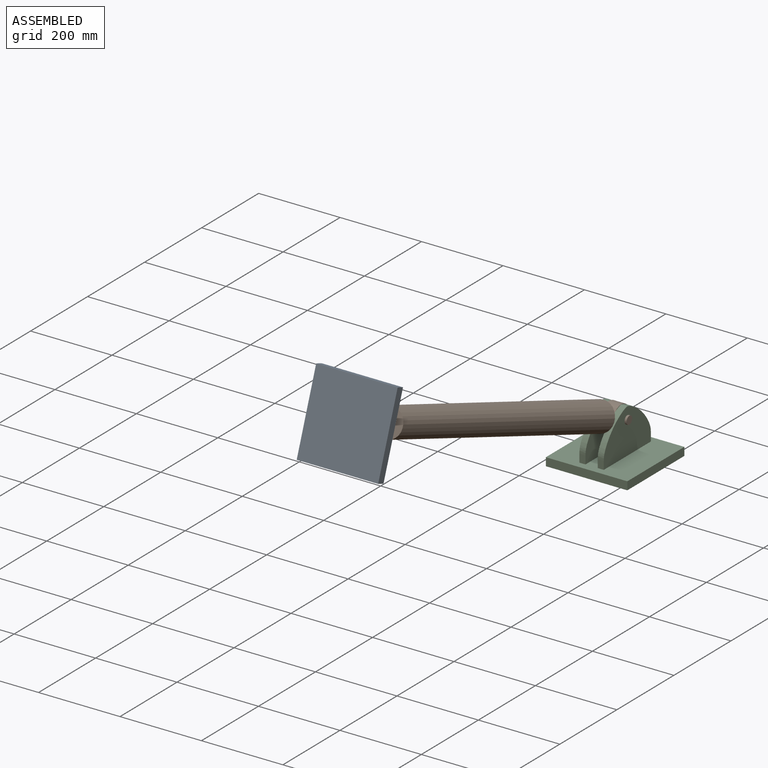
[diagram: assembled view]
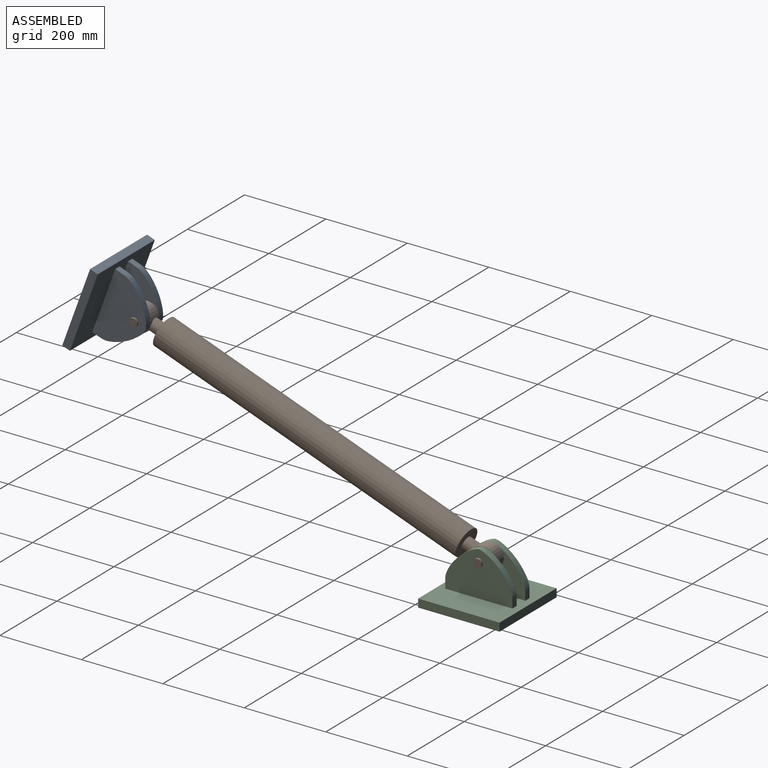
[diagram: assembled view, second angle]
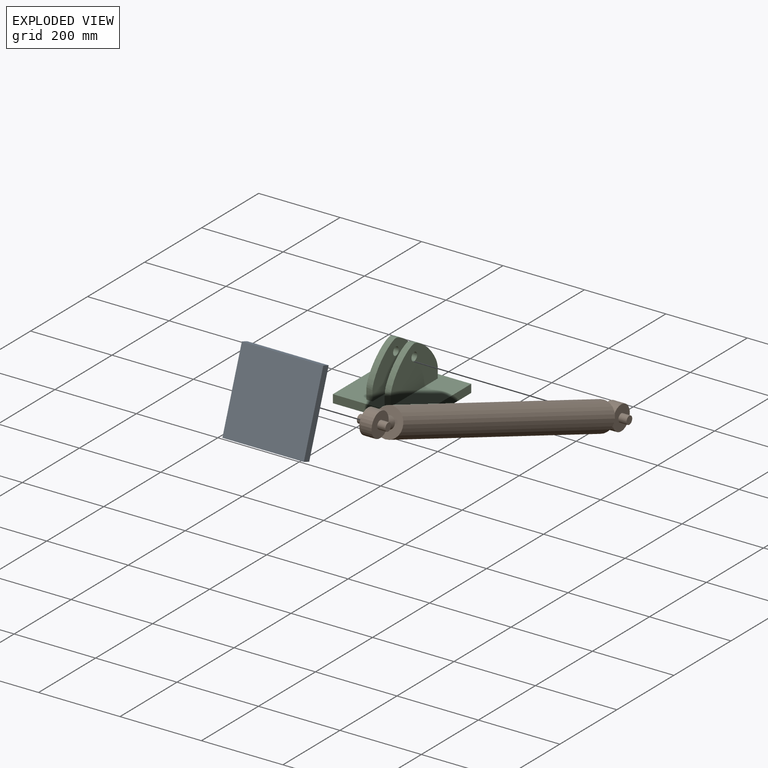
[diagram: exploded view]
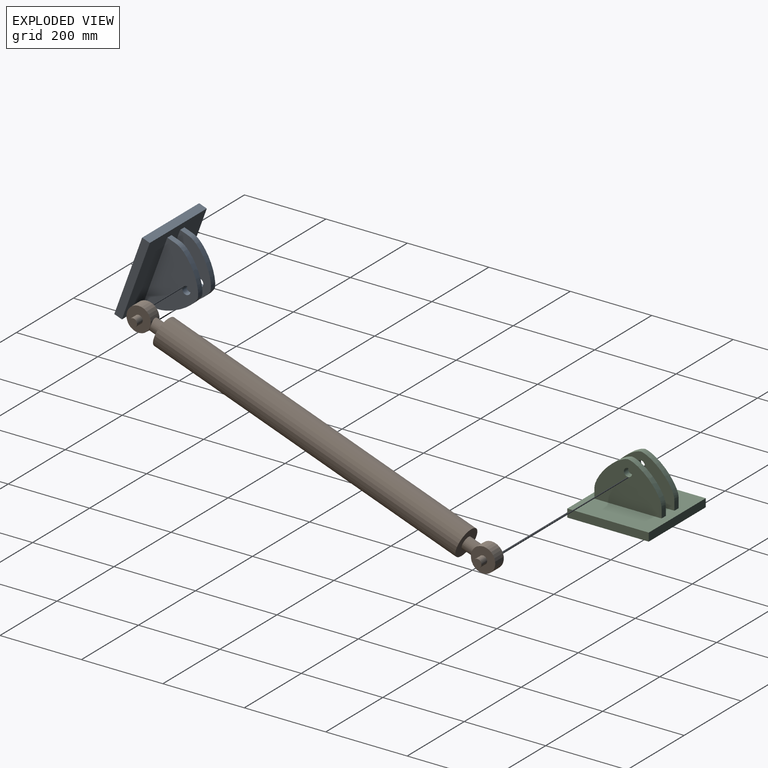
[diagram: exploded view, second angle]
ASSEMBLY  parts=3 mates=2
PART A: 20 faces, bbox 200x200x130 mm
  f0: bspline ~90x90mm, area 1930mm2, adj f1,f2,f3,f4
  f1: bspline ~90x90mm, area 1930mm2, adj f0,f2,f4,f5
  f2: plane 165.01x109.85mm, normal (-1,0,0), area 13243.1mm2, adj f0,f1,f3,f5,f6,f19
  f3: plane 20x15mm, normal (0,-1,0), area 300mm2, adj f0,f2,f4,f6
  f4: plane 165.01x109.85mm, normal (1,0,0), area 13243.3mm2, adj f0,f1,f3,f5,f6,f19
  f5: plane 20x15mm, normal (0,1,0), area 300mm2, adj f1,f2,f4,f6
  f6: plane 200x200mm, normal (0,0,1), area 35050mm2, adj f2,f3,f4,f5,f7,f8,f9,f10
  f7: plane 200x20mm, normal (1,0,0), area 4000mm2, adj f6,f8,f10,f11
  f8: plane 200x20mm, normal (0,1,0), area 4000mm2, adj f6,f7,f9,f11
  f9: plane 200x20mm, normal (-1,0,0), area 4000mm2, adj f6,f8,f10,f11
  f10: plane 200x20mm, normal (0,-1,0), area 4000mm2, adj f6,f7,f9,f11
  f11: plane 200x200mm, normal (0,0,-1), area 40000mm2, adj f7,f8,f9,f10
  f12: plane 165.01x109.85mm, normal (-1,0,0), area 13243.1mm2, adj f6,f13,f15,f16,f17,f18
  f13: plane 20x15mm, normal (0,-1,0), area 300mm2, adj f6,f12,f14,f16
  f14: plane 165.01x109.85mm, normal (1,0,0), area 13243.3mm2, adj f6,f13,f15,f16,f17,f18
  f15: plane 20x15mm, normal (0,1,0), area 300mm2, adj f6,f12,f14,f17
  f16: bspline ~90x90mm, area 1930mm2, adj f12,f13,f14,f17
  f17: bspline ~90x90mm, area 1930mm2, adj f12,f14,f15,f16
  f18: cylinder r=10mm len=20mm, axis (1,0,0), area 942.5mm2, adj f12,f14
  f19: cylinder r=10mm len=20mm, axis (1,0,0), area 942.5mm2, adj f2,f4
PART B: 19 faces, bbox 70x70x960 mm
  f0: cylinder r=35mm len=790mm, axis (0,0,-1), area 173730.1mm2, adj f1,f2
  f1: plane 70x70mm, normal (0,0,1), area 3141.6mm2, adj f0,f3
  f2: plane 70x70mm, normal (0,0,-1), area 3141.6mm2, adj f0,f11
  f3: cylinder r=15mm len=30mm, axis (0,0,-1), area 2542.3mm2, adj f1,f6
  f4: plane 60x60mm, normal (0,-1,0), area 2513.3mm2, adj f6,f9
  f5: plane 60x60mm, normal (0,1,0), area 2513.3mm2, adj f6,f7
  f6: cylinder r=30mm len=60mm, axis (0,1,0), area 4923.3mm2, adj f3,f4,f5
  f7: cylinder r=10mm len=20mm, axis (0,-1,0), area 1256.6mm2, adj f5,f8
  f8: plane 20x20mm, normal (0,1,0), area 314.2mm2, adj f7
  f9: cylinder r=10mm len=20mm, axis (0,1,0), area 1256.6mm2, adj f4,f10
  f10: plane 20x20mm, normal (0,-1,0), area 314.2mm2, adj f9
  f11: cylinder r=15mm len=30mm, axis (0,0,1), area 2542.2mm2, adj f2,f14
  f12: plane 60x60mm, normal (0,-1,0), area 2513.3mm2, adj f14,f17
  f13: plane 60x60mm, normal (0,1,0), area 2513.3mm2, adj f14,f15
  f14: cylinder r=30mm len=60mm, axis (0,-1,0), area 4923.5mm2, adj f11,f12,f13
  f15: cylinder r=10mm len=20mm, axis (0,-1,0), area 1256.6mm2, adj f13,f16
  f16: plane 20x20mm, normal (0,1,0), area 314.2mm2, adj f15
  f17: cylinder r=10mm len=20mm, axis (0,1,0), area 1256.6mm2, adj f12,f18
  f18: plane 20x20mm, normal (0,-1,0), area 314.2mm2, adj f17
PART C: same geometry as A
PLACE A rot(axis=(-1,0,0),110deg) t=(-259.16,-1404.31,656.42)mm
PLACE B rot(axis=(0.5,0.5,-0.71),109.2deg) t=(-259.16,-516.3,333.21)mm
PLACE C rot(axis=(-0.97,0.24,0.02),0deg) t=(-259.16,-464.62,214.4)mm
MATE cylindrical B.f15 <-> C.f18  axis (-1,0,0) through (-294.16,-464.62,314.4)mm
MATE cylindrical A.f18 <-> B.f7  axis (-1,0,0) through (-289.16,-1310.34,622.22)mm
